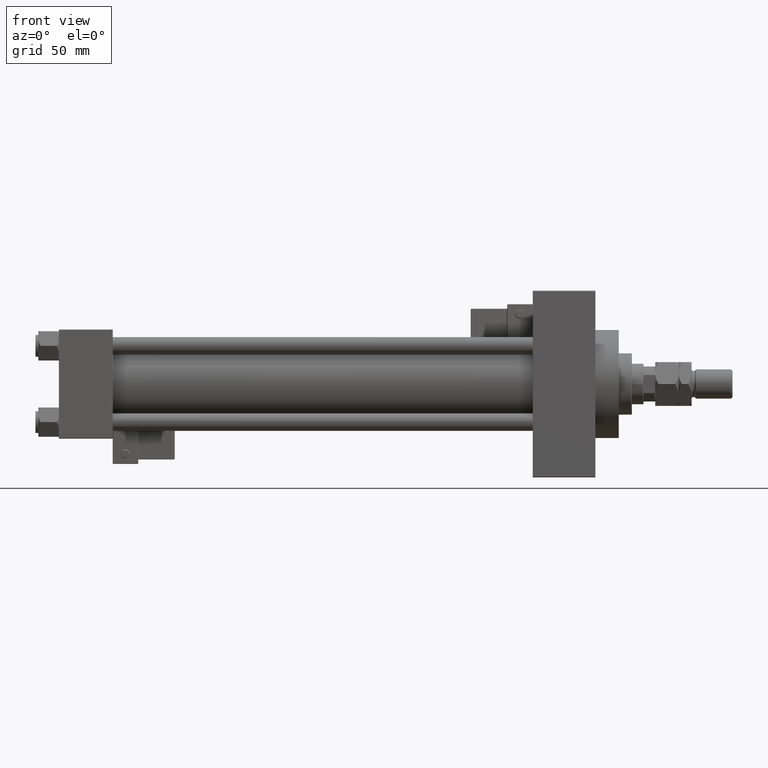
[diagram: clean part render]
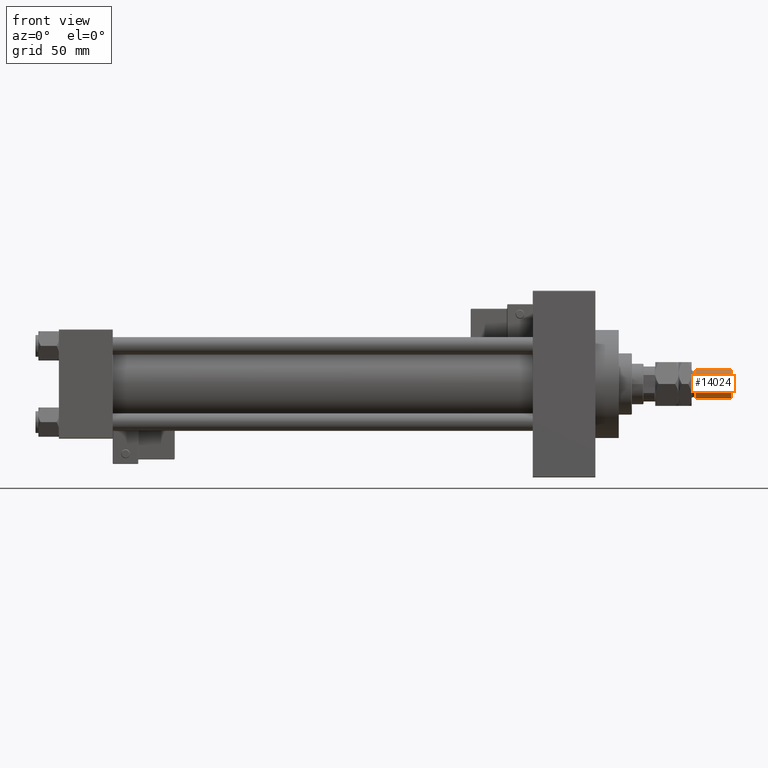
[diagram: same view with one face highlighted and labeled with its STEP entity id]
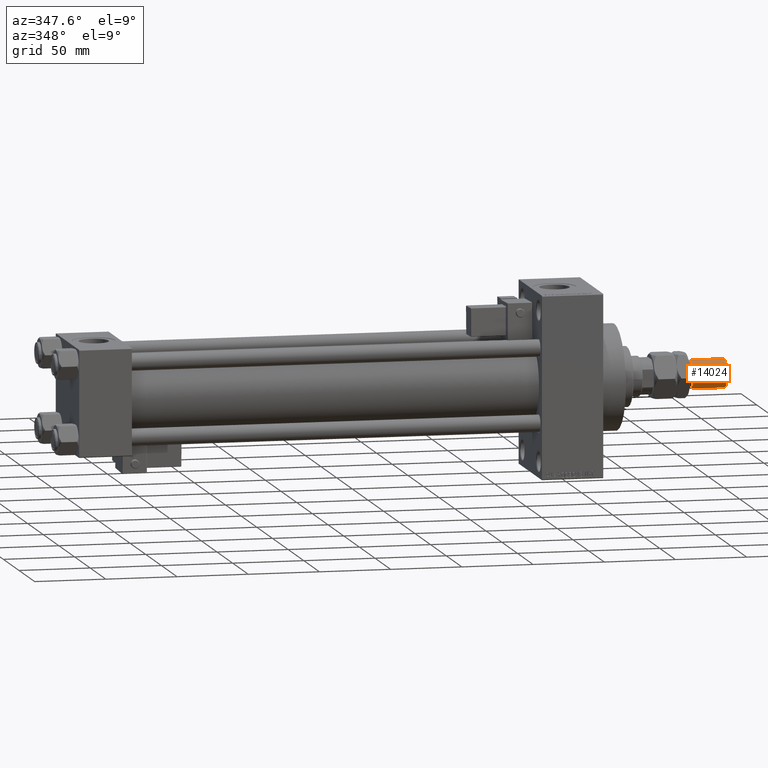
[diagram: same view with one face highlighted and labeled with its STEP entity id]
A machine part, front view. The second image highlights one B-rep face of the part: STEP entity #14024.
A second angle (auxiliary view) of the same face is appended — the face is thin or edge-on in the first view.
In plain terms, the highlighted cylindrical surface (edge-blend (fillet) strip) has radius 10 mm, axis along (-1, -0, 0).
Its self-contained STEP definition (entity closure, byte-faithful):
#228 = EDGE_CURVE ( 'NONE', #50112, #32778, #41226, .T. ) ;
#4793 = CARTESIAN_POINT ( 'NONE',  ( 0.000000000000000000, 0.000000000000000000, 28.00000000000002487 ) ) ;
#5255 = CYLINDRICAL_SURFACE ( 'NONE', #31794, 10.00000000000000000 ) ;
#6453 = AXIS2_PLACEMENT_3D ( 'NONE', #4793, #24643, #41815 ) ;
#6817 = ORIENTED_EDGE ( 'NONE', *, *, #228, .T. ) ;
#14024 = ADVANCED_FACE ( 'NONE', ( #38246 ), #5255, .T. ) ;
#17797 = CARTESIAN_POINT ( 'NONE',  ( 10.00000000000000000, 1.224646799147353059E-15, 52.00000000000004974 ) ) ;
#17877 = DIRECTION ( 'NONE',  ( -1.000000000000000000, 0.000000000000000000, 0.000000000000000000 ) ) ;
#18387 = CARTESIAN_POINT ( 'NONE',  ( 10.00000000000000000, 1.224646799147353059E-15, 28.00000000000002487 ) ) ;
#18997 = AXIS2_PLACEMENT_3D ( 'NONE', #51997, #31056, #43925 ) ;
#20440 = CARTESIAN_POINT ( 'NONE',  ( -10.00000000000000000, 0.000000000000000000, 28.00000000000002487 ) ) ;
#22445 = ORIENTED_EDGE ( 'NONE', *, *, #24821, .T. ) ;
#24643 = DIRECTION ( 'NONE',  ( -0.000000000000000000, -0.000000000000000000, 1.000000000000000000 ) ) ;
#24821 = EDGE_CURVE ( 'NONE', #32778, #25558, #42399, .T. ) ;
#25128 = CARTESIAN_POINT ( 'NONE',  ( -10.00000000000000000, 0.000000000000000000, 53.00000000000000711 ) ) ;
#25558 = VERTEX_POINT ( 'NONE', #18387 ) ;
#28429 = CARTESIAN_POINT ( 'NONE',  ( 10.00000000000000000, 1.224646799147353059E-15, 53.00000000000000711 ) ) ;
#31056 = DIRECTION ( 'NONE',  ( 0.000000000000000000, 0.000000000000000000, -1.000000000000000000 ) ) ;
#31250 = VECTOR ( 'NONE', #45806, 1000.000000000000000 ) ;
#31794 = AXIS2_PLACEMENT_3D ( 'NONE', #50615, #34229, #17877 ) ;
#31934 = DIRECTION ( 'NONE',  ( -0.000000000000000000, -0.000000000000000000, -1.000000000000000000 ) ) ;
#32062 = CARTESIAN_POINT ( 'NONE',  ( -10.00000000000000000, 0.000000000000000000, 52.00000000000004974 ) ) ;
#32778 = VERTEX_POINT ( 'NONE', #20440 ) ;
#34229 = DIRECTION ( 'NONE',  ( -0.000000000000000000, -0.000000000000000000, -1.000000000000000000 ) ) ;
#34233 = EDGE_LOOP ( 'NONE', ( #43306, #38162, #6817, #22445 ) ) ;
#38162 = ORIENTED_EDGE ( 'NONE', *, *, #41072, .T. ) ;
#38246 = FACE_OUTER_BOUND ( 'NONE', #34233, .T. ) ;
#41072 = EDGE_CURVE ( 'NONE', #44951, #50112, #48223, .T. ) ;
#41226 = LINE ( 'NONE', #25128, #31250 ) ;
#41815 = DIRECTION ( 'NONE',  ( 1.000000000000000000, 0.000000000000000000, 0.000000000000000000 ) ) ;
#42399 = CIRCLE ( 'NONE', #6453, 10.00000000000000000 ) ;
#43306 = ORIENTED_EDGE ( 'NONE', *, *, #46845, .F. ) ;
#43925 = DIRECTION ( 'NONE',  ( 1.000000000000000000, 0.000000000000000000, 0.000000000000000000 ) ) ;
#44951 = VERTEX_POINT ( 'NONE', #17797 ) ;
#45806 = DIRECTION ( 'NONE',  ( -0.000000000000000000, -0.000000000000000000, -1.000000000000000000 ) ) ;
#46845 = EDGE_CURVE ( 'NONE', #44951, #25558, #52348, .T. ) ;
#48223 = CIRCLE ( 'NONE', #18997, 10.00000000000000000 ) ;
#50112 = VERTEX_POINT ( 'NONE', #32062 ) ;
#50615 = CARTESIAN_POINT ( 'NONE',  ( 0.000000000000000000, 0.000000000000000000, 53.00000000000000711 ) ) ;
#51823 = VECTOR ( 'NONE', #31934, 1000.000000000000000 ) ;
#51997 = CARTESIAN_POINT ( 'NONE',  ( 0.000000000000000000, 0.000000000000000000, 52.00000000000004974 ) ) ;
#52348 = LINE ( 'NONE', #28429, #51823 ) ;